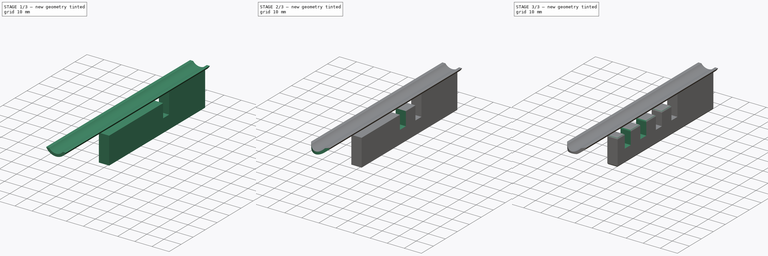
[diagram: build sequence overview — one tinted view per stage of 3, left to right]
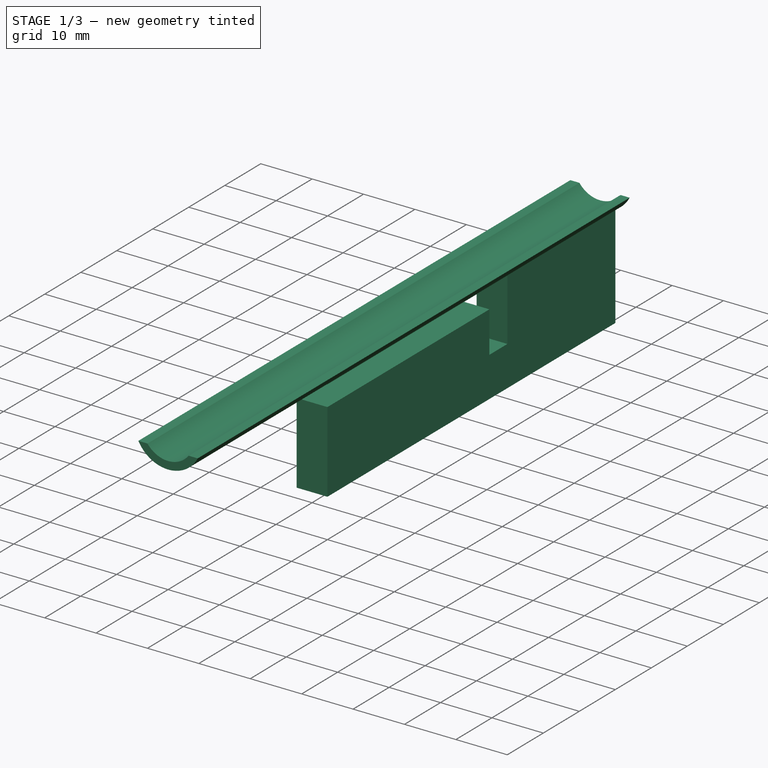
[diagram: stage 1 of 3 — iso view after this stage's code; geometry added in this stage tinted green]
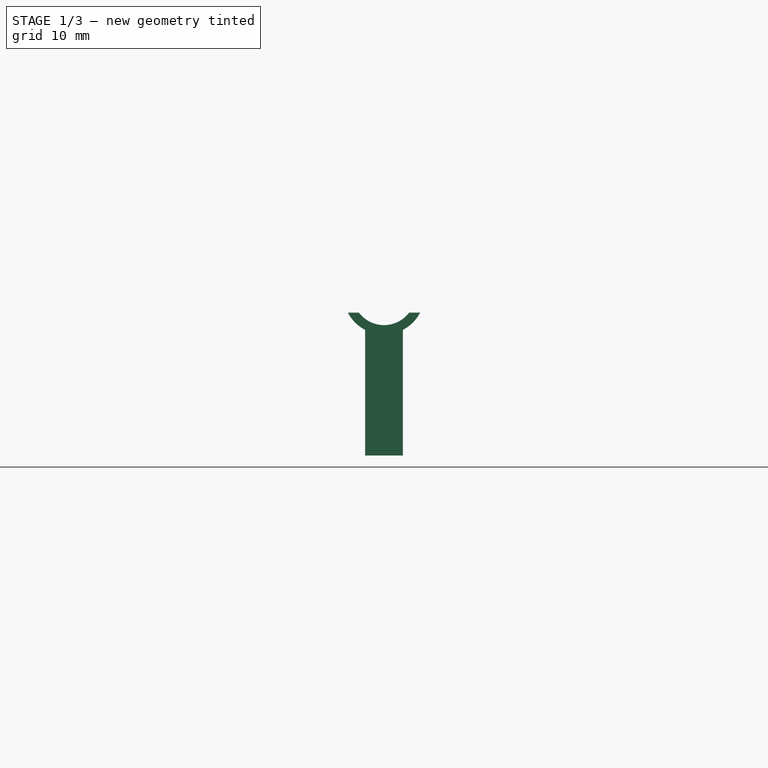
[diagram: stage 1 of 3 — front view after this stage's code; geometry added in this stage tinted green]
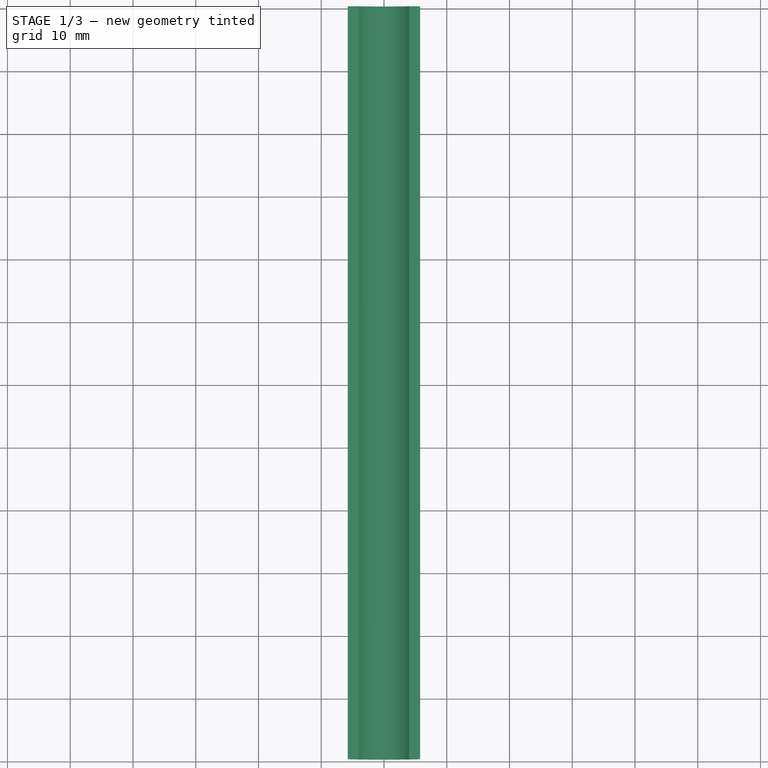
[diagram: stage 1 of 3 — top view after this stage's code; geometry added in this stage tinted green]
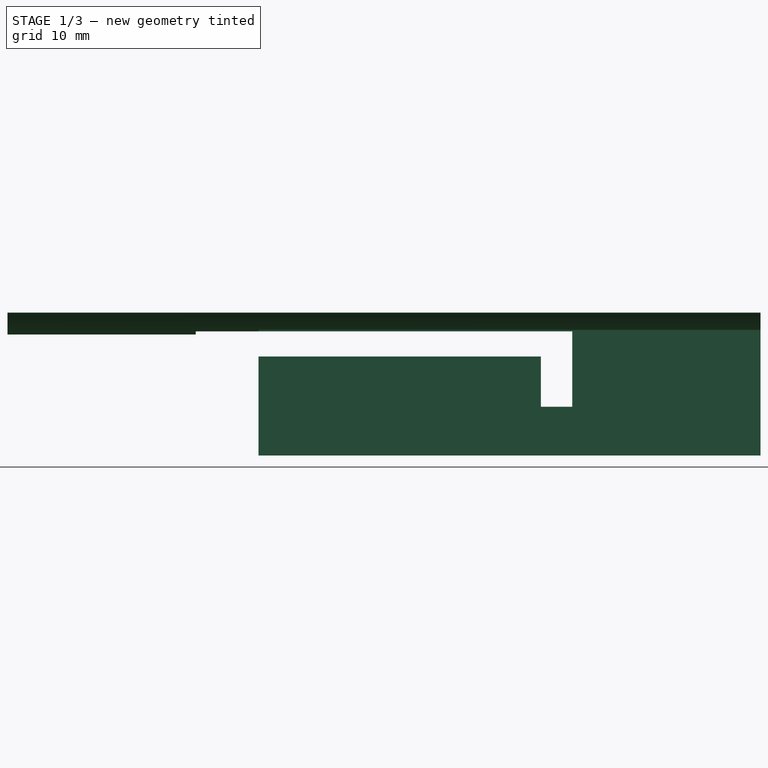
[diagram: stage 1 of 3 — right view after this stage's code; geometry added in this stage tinted green]
FCSTD DOCUMENT  (FreeCAD 0.19R24291 (Git))
Label: syringe_filler
License: All rights reserved
LicenseURL: http://en.wikipedia.org/wiki/All_rights_reserved
objects: Sketcher::SketchObject×7, PartDesign::Pocket×5, PartDesign::Pad×2, PartDesign::Fillet×1, PartDesign::Body×1
note: 24 computed .brp shape members not serialized (recipe doc carries the construction recipe); baked Part::Feature solids carry a one-line shape summary decoded from their .brp

FEATURE [Sketcher::SketchObject] Sketch
  FullyConstrained = true
  MapMode = 5
  Placement = pos=(0,0,0) rot=(1,0,0;1.5708rad)
  Support = -> [XZ_Plane]
  sketch-geometry (5):
    g0: Circle CenterX=0 CenterY=0 CenterZ=0 NormalX=0 NormalY=0 NormalZ=1 AngleXU=0 Radius=7
    g1: ArcOfCircle CenterX=0 CenterY=0 CenterZ=0 NormalX=0 NormalY=0 NormalZ=1 AngleXU=0 Radius=5 StartAngle=3.78509 EndAngle=5.63968
    g2: ArcOfCircle CenterX=0 CenterY=0 CenterZ=0 NormalX=0 NormalY=0 NormalZ=1 AngleXU=0 Radius=6.5 StartAngle=3.62132 EndAngle=5.80346
    g3: LineSegment StartX=4 StartY=-3 StartZ=0 EndX=5.76628 EndY=-3 EndZ=0
    g4: LineSegment StartX=-4 StartY=-3 StartZ=0 EndX=-5.76628 EndY=-3 EndZ=0
  constraints (14):
    c: Coincident(g0,g-1)
    c: Radius(g0) = 7
    c: Coincident(g0,g1)
    c: Coincident(g0,g2)
    c: Coincident(g3,g2)
    c: Coincident(g4,g1)
    c: Coincident(g4,g2)
    c: Coincident(g3,g1)
    c: Radius(g2) = 6.5
    c: Radius(g1) = 5
    c: Horizontal(g4)
    c: Horizontal(g3)
    c: DistanceY(g1,g1) = 3
    c: DistanceY(g1,g1) = 3
FEATURE [PartDesign::Pad] Pad
  Direction = (1,1,1)
  Length = 120
  Length2 = 100
  Placement = pos=(0,0,0) rot=(1,0,0;1.5708rad)
  Profile = -> Sketch
  Refine = true
  Type = 0
FEATURE [Sketcher::SketchObject] Sketch001
  FullyConstrained = true
  MapMode = 5
  Placement = pos=(0,0,0) rot=(1,0,0;1.5708rad)
  Support = -> [XZ_Plane]
  sketch-geometry (4):
    g0: ArcOfCircle CenterX=0 CenterY=0 CenterZ=0 NormalX=0 NormalY=0 NormalZ=1 AngleXU=0 Radius=6.5 StartAngle=4.23266 EndAngle=5.19212
    g1: LineSegment StartX=-3 StartY=-5.76628 StartZ=0 EndX=-3 EndY=-25.7663 EndZ=0
    g2: LineSegment StartX=-3 StartY=-25.7663 StartZ=0 EndX=3 EndY=-25.7663 EndZ=0
    g3: LineSegment StartX=3 StartY=-25.7663 StartZ=0 EndX=3 EndY=-5.76628 EndZ=0
  constraints (12):
    c: Coincident(g0,g1)
    c: Vertical(g1)
    c: Coincident(g1,g2)
    c: Horizontal(g2)
    c: Coincident(g2,g3)
    c: Coincident(g3,g0)
    c: Vertical(g3)
    c: DistanceX(g2,g2) = 6
    c: DistanceY(g3,g3) = 20
    c: Horizontal(g0,g0)
    c: Radius(g0) = 6.5
    c: Coincident(g0,g-1)
FEATURE [PartDesign::Pad] Pad001
  BaseFeature = -> Pad
  Direction = (1,1,1)
  Length = 80
  Length2 = 100
  Placement = pos=(0,0,0) rot=(1,0,0;1.5708rad)
  Profile = -> Sketch001
  Refine = true
  Type = 0
FEATURE [Sketcher::SketchObject] Sketch002
  ExternalGeometry = -> [Pad001]
  FullyConstrained = true
  MapMode = 5
  Placement = pos=(0,0,0) rot=(0.57735,0.57735,0.57735;2.0944rad)
  Support = -> [YZ_Plane]
  sketch-geometry (6):
    g0: LineSegment StartX=-30 StartY=-18 StartZ=0 EndX=-30 EndY=-6 EndZ=0
    g1: LineSegment StartX=-30 StartY=-6 StartZ=0 EndX=-90 EndY=-6 EndZ=0
    g2: LineSegment StartX=-90 StartY=-6 StartZ=0 EndX=-90 EndY=-10 EndZ=0
    g3: LineSegment StartX=-90 StartY=-10 StartZ=0 EndX=-35 EndY=-10 EndZ=0
    g4: LineSegment StartX=-35 StartY=-10 StartZ=0 EndX=-35 EndY=-18 EndZ=0
    g5: LineSegment StartX=-35 StartY=-18 StartZ=0 EndX=-30 EndY=-18 EndZ=0
  constraints (18):
    c: Vertical(g0)
    c: Coincident(g0,g1)
    c: Horizontal(g1)
    c: Coincident(g1,g2)
    c: Coincident(g2,g3)
    c: Horizontal(g3)
    c: Coincident(g3,g4)
    c: Vertical(g4)
    c: Coincident(g4,g5)
    c: Coincident(g5,g0)
    c: Horizontal(g5)
    c: Vertical(g2)
    c: DistanceY(g2,g2) = 4
    c: DistanceY(g0,g0) = 12
    c: DistanceX(g4,g0) = 5
    c: DistanceX(g1,g1) = 60
    c: DistanceX(g-4,g0) = 90
    c: DistanceY(g0,g-1) = 6
FEATURE [PartDesign::Pocket] Pocket
  BaseFeature = -> Pad001
  Length = 5
  Length2 = 100
  Midplane = true
  Placement = pos=(0,0,0) rot=(1,0,0;1.5708rad)
  Profile = -> Sketch002
  Refine = true
  Type = 1
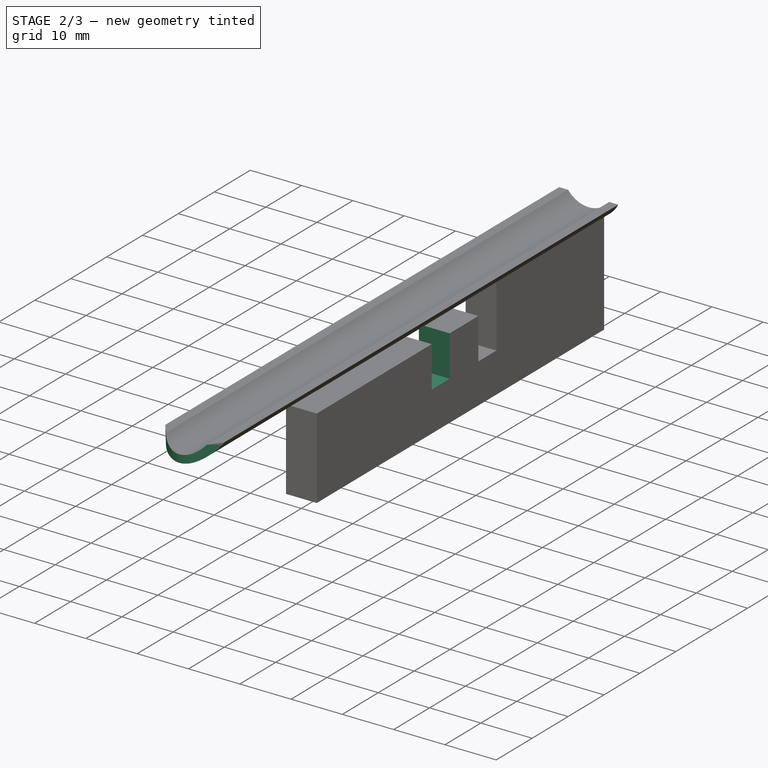
[diagram: stage 2 of 3 — iso view after this stage's code; geometry added in this stage tinted green]
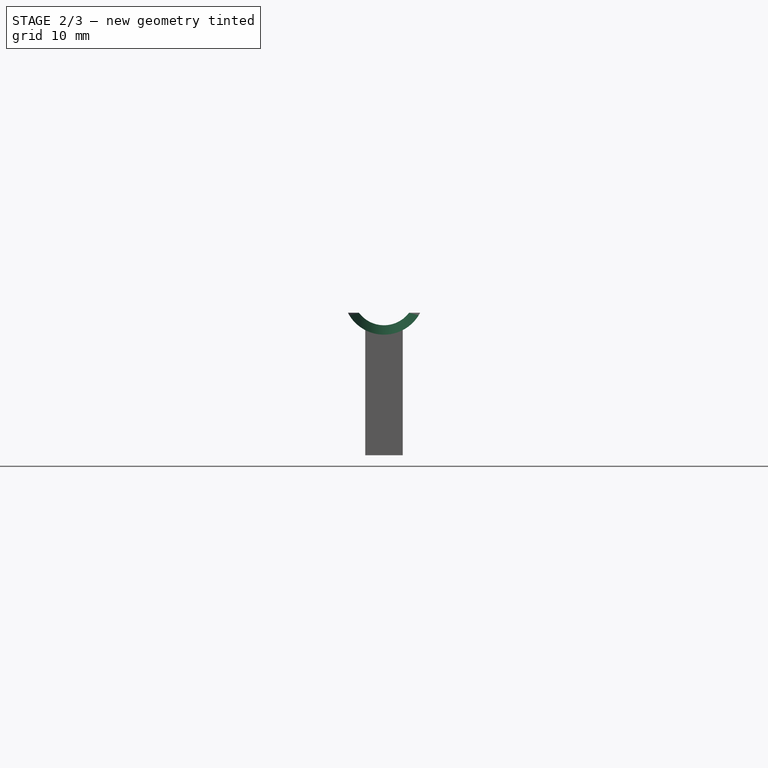
[diagram: stage 2 of 3 — front view after this stage's code; geometry added in this stage tinted green]
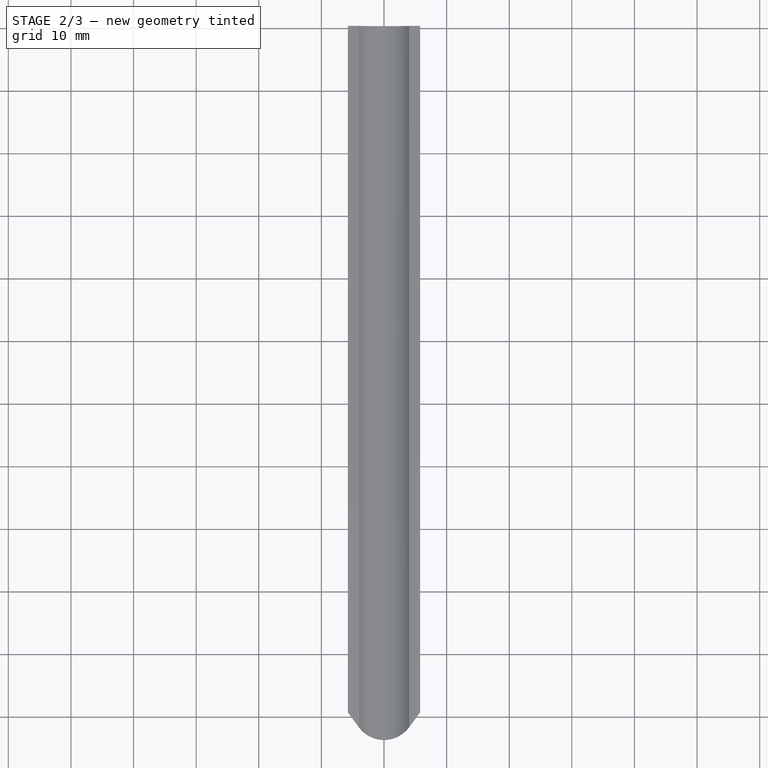
[diagram: stage 2 of 3 — top view after this stage's code; geometry added in this stage tinted green]
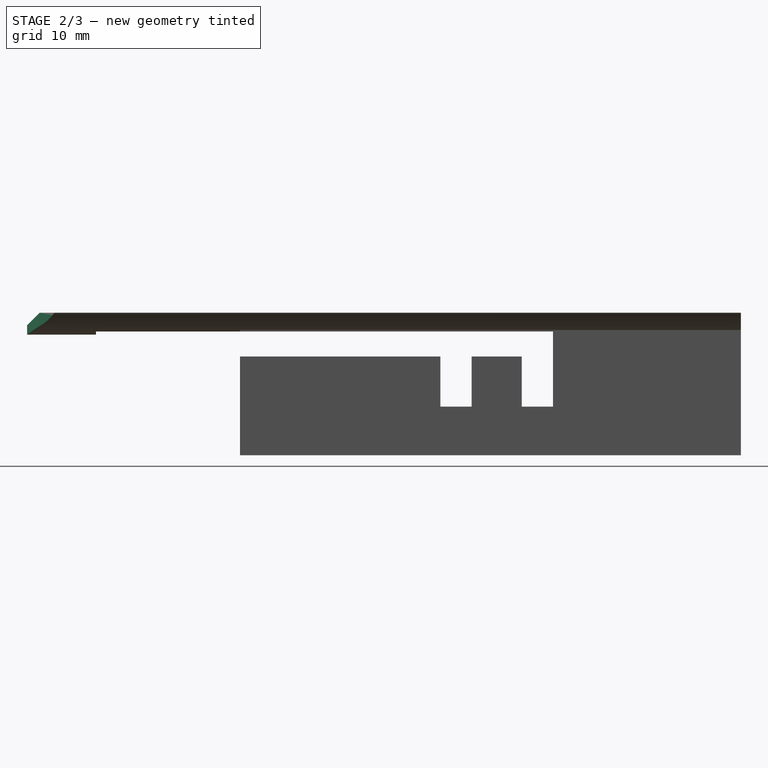
[diagram: stage 2 of 3 — right view after this stage's code; geometry added in this stage tinted green]
FEATURE [Sketcher::SketchObject] Sketch003
  FullyConstrained = true
  MapMode = 5
  Support = -> [XY_Plane]
  sketch-geometry (6):
    g0: LineSegment StartX=-10 StartY=-104 StartZ=0 EndX=-10 EndY=-134 EndZ=0
    g1: LineSegment StartX=-10 StartY=-134 StartZ=0 EndX=10 EndY=-134 EndZ=0
    g2: LineSegment StartX=10 StartY=-134 StartZ=0 EndX=10 EndY=-104 EndZ=0
    g3: LineSegment StartX=10 StartY=-104 StartZ=0 EndX=4 EndY=-112 EndZ=0
    g4: ArcOfCircle CenterX=-1.3e-15 CenterY=-109 CenterZ=0 NormalX=0 NormalY=0 NormalZ=1 AngleXU=0 Radius=5 StartAngle=3.78509 EndAngle=5.63968
    g5: LineSegment StartX=-4 StartY=-112 StartZ=0 EndX=-10 EndY=-104 EndZ=0
  constraints (16):
    c: Vertical(g0)
    c: Coincident(g0,g1)
    c: Coincident(g1,g2)
    c: Vertical(g2)
    c: Coincident(g2,g3)
    c: Tangent(g3,g4) = 1.5708
    c: Coincident(g4,g5)
    c: Coincident(g5,g0)
    c: Symmetric(g1,g0,g-2)
    c: Horizontal(g2,g0)
    c: Symmetric(g3,g4,g-2)
    c: DistanceX(g1,g1) = 20
    c: DistanceY(g1,g2) = 30
    c: Radius(g4) = 5
    c: DistanceY(g4,g2) = 5
    c: DistanceY(g4,g-1) = 109
FEATURE [PartDesign::Pocket] Pocket001
  BaseFeature = -> Pocket
  Length = 5
  Length2 = 100
  Placement = pos=(0,0,0) rot=(1,0,0;1.5708rad)
  Profile = -> Sketch003
  Refine = true
  Type = 1
FEATURE [Sketcher::SketchObject] Sketch004
  ExternalGeometry = -> [Pad001]
  FullyConstrained = true
  MapMode = 5
  Placement = pos=(0,0,0) rot=(0.57735,0.57735,0.57735;2.0944rad)
  Support = -> [YZ_Plane]
  sketch-geometry (6):
    g0: LineSegment StartX=-43 StartY=-18 StartZ=0 EndX=-43 EndY=-6 EndZ=0
    g1: LineSegment StartX=-43 StartY=-6 StartZ=0 EndX=-103 EndY=-6 EndZ=0
    g2: LineSegment StartX=-103 StartY=-6 StartZ=0 EndX=-103 EndY=-10 EndZ=0
    g3: LineSegment StartX=-103 StartY=-10 StartZ=0 EndX=-48 EndY=-10 EndZ=0
    g4: LineSegment StartX=-48 StartY=-10 StartZ=0 EndX=-48 EndY=-18 EndZ=0
    g5: LineSegment StartX=-48 StartY=-18 StartZ=0 EndX=-43 EndY=-18 EndZ=0
  constraints (18):
    c: Vertical(g0)
    c: Coincident(g0,g1)
    c: Horizontal(g1)
    c: Coincident(g1,g2)
    c: Coincident(g2,g3)
    c: Horizontal(g3)
    c: Coincident(g3,g4)
    c: Vertical(g4)
    c: Coincident(g4,g5)
    c: Coincident(g5,g0)
    c: Horizontal(g5)
    c: Vertical(g2)
    c: DistanceY(g2,g2) = 4
    c: DistanceY(g0,g0) = 12
    c: DistanceX(g4,g0) = 5
    c: DistanceX(g1,g1) = 60
    c: DistanceX(g-4,g0) = 77
    c: DistanceY(g0,g-1) = 6
FEATURE [PartDesign::Pocket] Pocket002
  BaseFeature = -> Pocket001
  Length = 5
  Length2 = 100
  Midplane = true
  Placement = pos=(0,0,0) rot=(1,0,0;1.5708rad)
  Profile = -> Sketch004
  Refine = true
  Type = 1
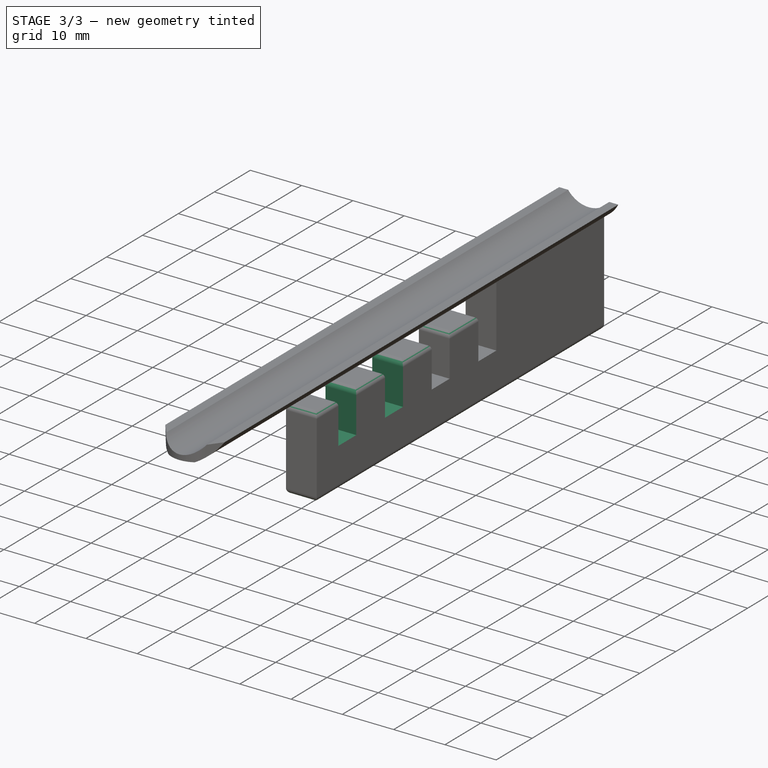
[diagram: stage 3 of 3 — iso view after this stage's code; geometry added in this stage tinted green]
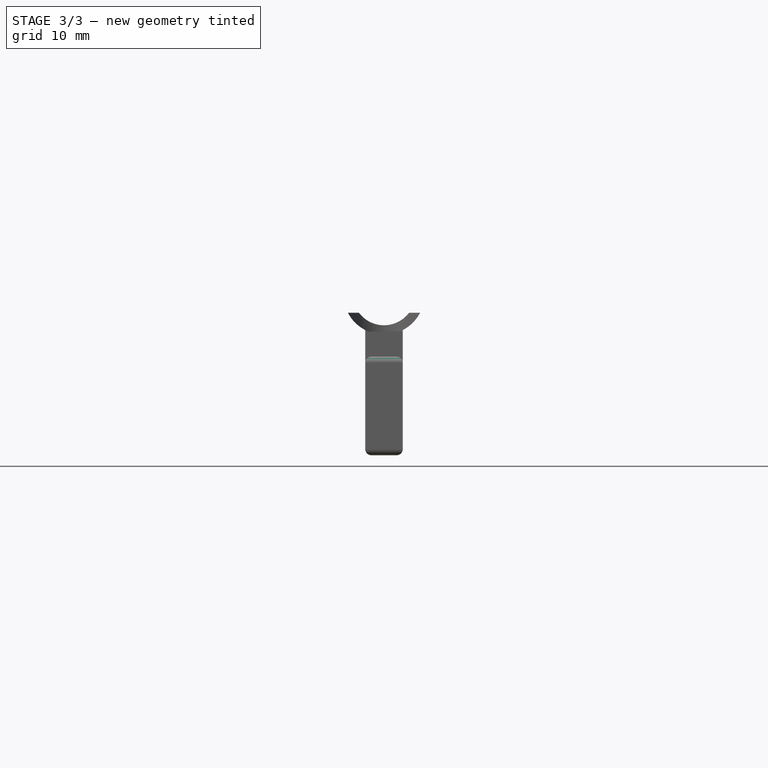
[diagram: stage 3 of 3 — front view after this stage's code; geometry added in this stage tinted green]
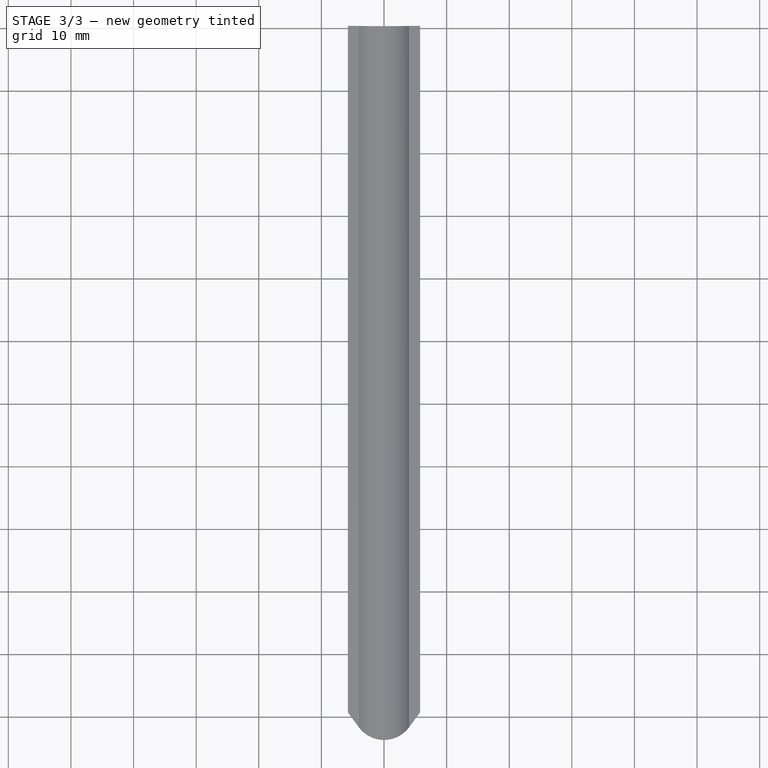
[diagram: stage 3 of 3 — top view after this stage's code; geometry added in this stage tinted green]
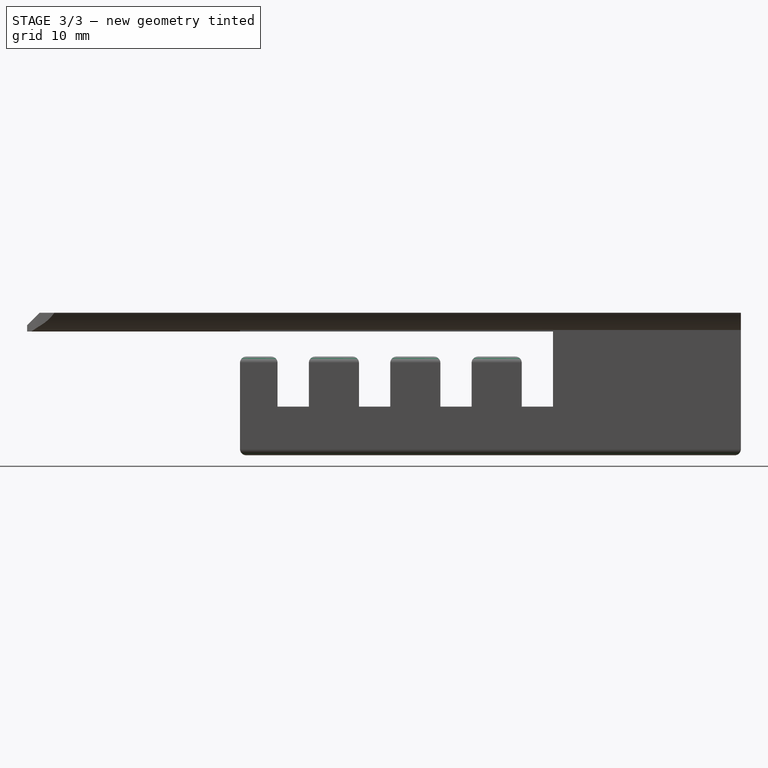
[diagram: stage 3 of 3 — right view after this stage's code; geometry added in this stage tinted green]
FEATURE [Sketcher::SketchObject] Sketch005
  ExternalGeometry = -> [Pad001]
  FullyConstrained = true
  MapMode = 5
  Placement = pos=(0,0,0) rot=(0.57735,0.57735,0.57735;2.0944rad)
  Support = -> [YZ_Plane]
  sketch-geometry (6):
    g0: LineSegment StartX=-56 StartY=-18 StartZ=0 EndX=-56 EndY=-6 EndZ=0
    g1: LineSegment StartX=-56 StartY=-6 StartZ=0 EndX=-116 EndY=-6 EndZ=0
    g2: LineSegment StartX=-116 StartY=-6 StartZ=0 EndX=-116 EndY=-10 EndZ=0
    g3: LineSegment StartX=-116 StartY=-10 StartZ=0 EndX=-61 EndY=-10 EndZ=0
    g4: LineSegment StartX=-61 StartY=-10 StartZ=0 EndX=-61 EndY=-18 EndZ=0
    g5: LineSegment StartX=-61 StartY=-18 StartZ=0 EndX=-56 EndY=-18 EndZ=0
  constraints (18):
    c: Vertical(g0)
    c: Coincident(g0,g1)
    c: Horizontal(g1)
    c: Coincident(g1,g2)
    c: Coincident(g2,g3)
    c: Horizontal(g3)
    c: Coincident(g3,g4)
    c: Vertical(g4)
    c: Coincident(g4,g5)
    c: Coincident(g5,g0)
    c: Horizontal(g5)
    c: Vertical(g2)
    c: DistanceY(g2,g2) = 4
    c: DistanceY(g0,g0) = 12
    c: DistanceX(g4,g0) = 5
    c: DistanceX(g1,g1) = 60
    c: DistanceX(g-4,g0) = 64
    c: DistanceY(g0,g-1) = 6
FEATURE [PartDesign::Pocket] Pocket003
  BaseFeature = -> Pocket002
  Length = 5
  Length2 = 100
  Midplane = true
  Placement = pos=(0,0,0) rot=(1,0,0;1.5708rad)
  Profile = -> Sketch005
  Refine = true
  Type = 1
FEATURE [Sketcher::SketchObject] Sketch006
  ExternalGeometry = -> [Pad001]
  FullyConstrained = true
  MapMode = 5
  Placement = pos=(0,0,0) rot=(0.57735,0.57735,0.57735;2.0944rad)
  Support = -> [YZ_Plane]
  sketch-geometry (6):
    g0: LineSegment StartX=-69 StartY=-18 StartZ=0 EndX=-69 EndY=-6 EndZ=0
    g1: LineSegment StartX=-69 StartY=-6 StartZ=0 EndX=-129 EndY=-6 EndZ=0
    g2: LineSegment StartX=-129 StartY=-6 StartZ=0 EndX=-129 EndY=-10 EndZ=0
    g3: LineSegment StartX=-129 StartY=-10 StartZ=0 EndX=-74 EndY=-10 EndZ=0
    g4: LineSegment StartX=-74 StartY=-10 StartZ=0 EndX=-74 EndY=-18 EndZ=0
    g5: LineSegment StartX=-74 StartY=-18 StartZ=0 EndX=-69 EndY=-18 EndZ=0
  constraints (18):
    c: Vertical(g0)
    c: Coincident(g0,g1)
    c: Horizontal(g1)
    c: Coincident(g1,g2)
    c: Coincident(g2,g3)
    c: Horizontal(g3)
    c: Coincident(g3,g4)
    c: Vertical(g4)
    c: Coincident(g4,g5)
    c: Coincident(g5,g0)
    c: Horizontal(g5)
    c: Vertical(g2)
    c: DistanceY(g2,g2) = 4
    c: DistanceY(g0,g0) = 12
    c: DistanceX(g4,g0) = 5
    c: DistanceX(g1,g1) = 60
    c: DistanceX(g-4,g0) = 51
    c: DistanceY(g0,g-1) = 6
FEATURE [PartDesign::Pocket] Pocket004
  BaseFeature = -> Pocket003
  Length = 5
  Length2 = 100
  Midplane = true
  Placement = pos=(0,0,0) rot=(1,0,0;1.5708rad)
  Profile = -> Sketch006
  Refine = true
  Type = 1
FEATURE [PartDesign::Fillet] Fillet
  Base = -> Pocket004 [Face29,Face25,Face21,Face17,Face8]
  BaseFeature = -> Pocket004
  Placement = pos=(0,0,0) rot=(1,0,0;1.5708rad)
  Radius = 1
  Refine = true
  SupportTransform = false
FEATURE [PartDesign::Body] Body
  Group = -> [Sketch,Pad,Sketch001,Pad001,Sketch002,Pocket,Sketch003,Pocket001,Sketch004,Pocket002,Sketch005,Pocket003,Sketch006,Pocket004,Fillet]
  Origin = -> Origin
  Tip = -> Fillet
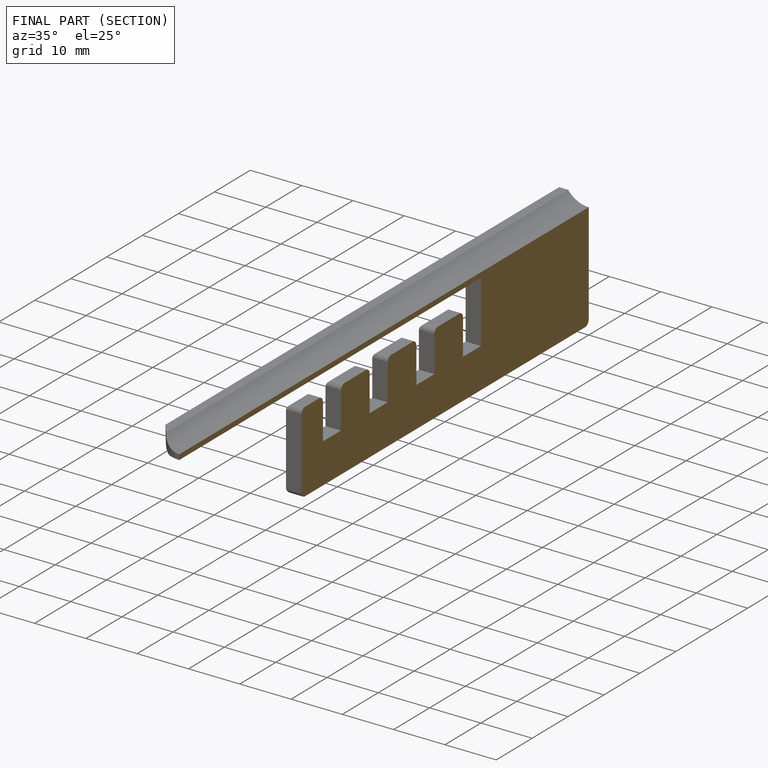
[diagram: finished part — half-section view (interior)]
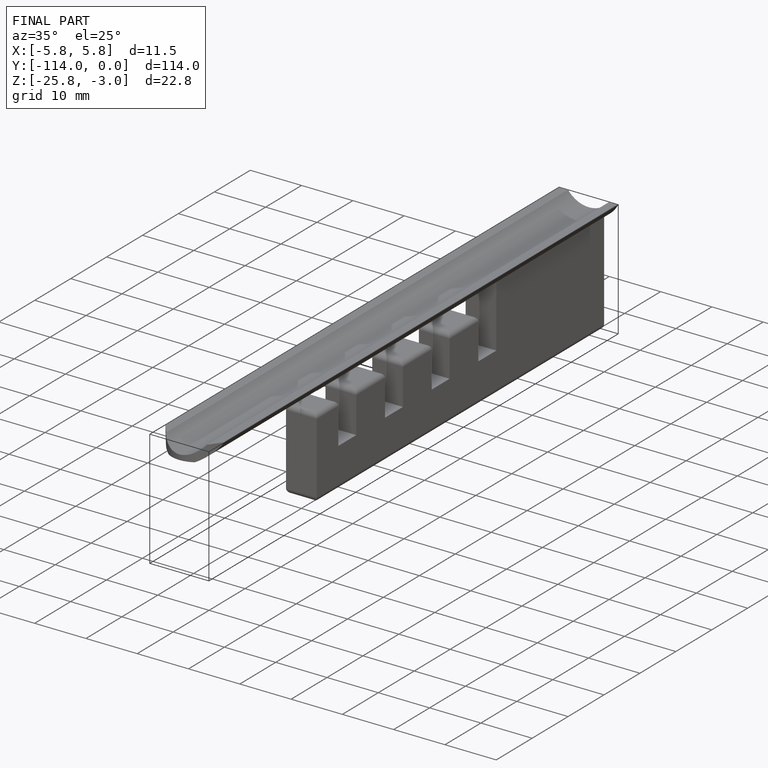
[diagram: finished part — iso view with bounding-box wireframe]
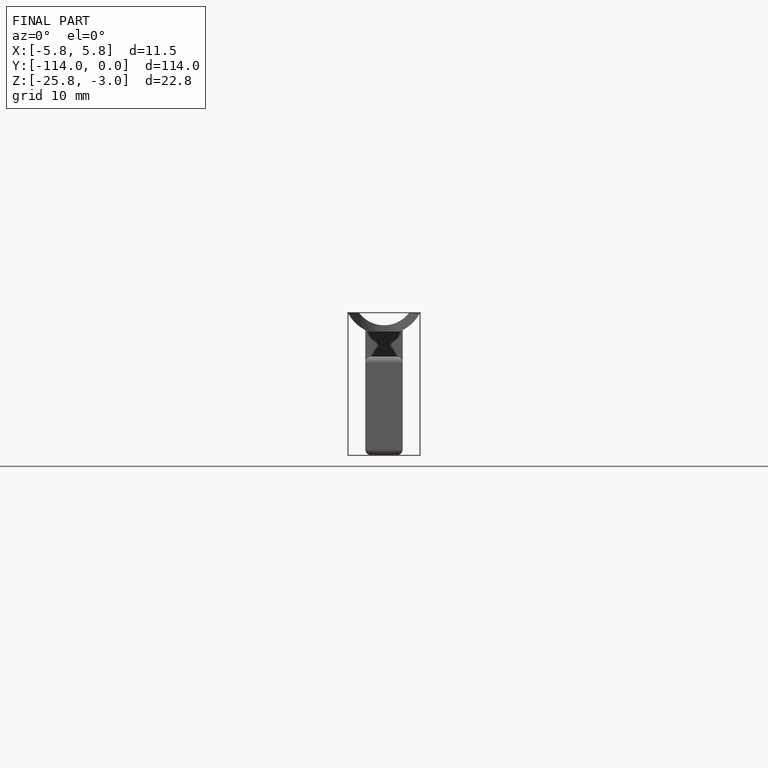
[diagram: finished part — front view with bounding-box wireframe]
